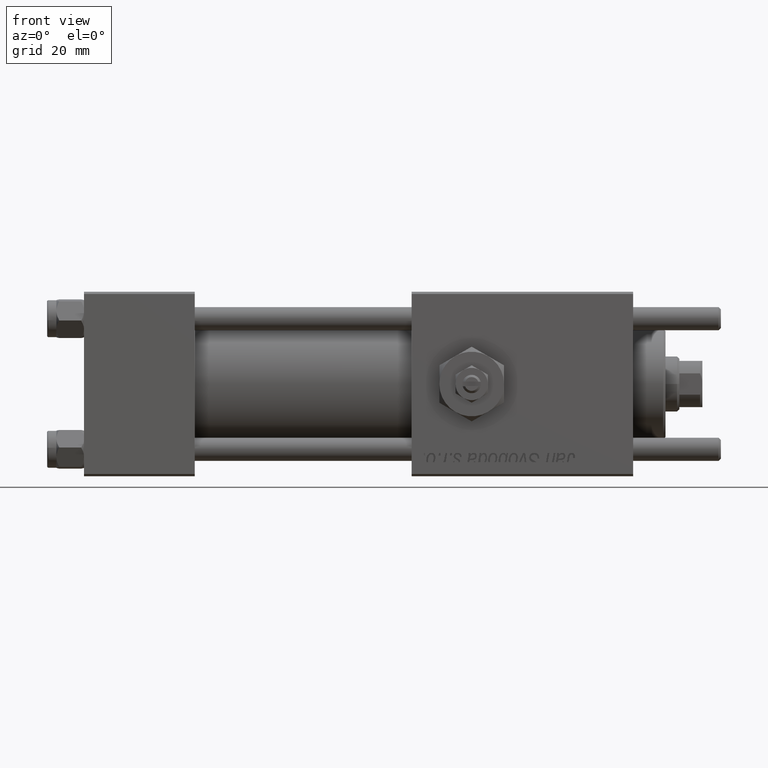
[diagram: clean part render]
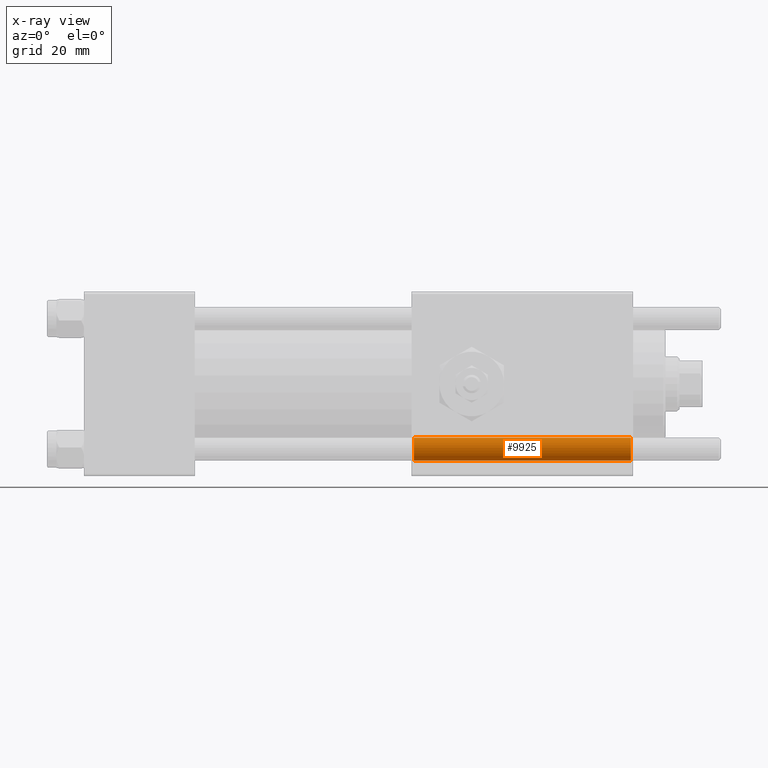
[diagram: x-ray — body ghosted, one internal face saturated and labeled with its STEP entity id]
A machine part, front view, then the same camera in x-ray: the body is ghosted and one INTERNAL B-rep face — a face not visible from any outside direction — is saturated and labeled: STEP entity #9925.
In plain terms, the highlighted cylindrical surface (edge-blend (fillet) strip) has radius 2.5 mm, axis along (1, 0, 0).
Its self-contained STEP definition (entity closure, byte-faithful):
#943 = CARTESIAN_POINT ( 'NONE',  ( 71.50000000000000000, -14.15000000000000036, -14.15000000000000036 ) ) ;
#1562 = AXIS2_PLACEMENT_3D ( 'NONE', #3075, #52582, #21155 ) ;
#1868 = CARTESIAN_POINT ( 'NONE',  ( 118.5000000000000000, -14.15000000000000036, -14.15000000000000036 ) ) ;
#2587 = LINE ( 'NONE', #24828, #22473 ) ;
#3075 = CARTESIAN_POINT ( 'NONE',  ( 61.00000000000000711, -14.15000000000000036, -14.15000000000000036 ) ) ;
#6592 = VERTEX_POINT ( 'NONE', #36018 ) ;
#7014 = ORIENTED_EDGE ( 'NONE', *, *, #11765, .F. ) ;
#7085 = EDGE_CURVE ( 'NONE', #6592, #50381, #30828, .T. ) ;
#8306 = DIRECTION ( 'NONE',  ( 1.000000000000000000, 0.000000000000000000, 0.000000000000000000 ) ) ;
#8529 = EDGE_LOOP ( 'NONE', ( #52247, #43121, #52432, #7014 ) ) ;
#9349 = CIRCLE ( 'NONE', #11228, 2.499999999999996891 ) ;
#9904 = DIRECTION ( 'NONE',  ( 1.000000000000000000, 0.000000000000000000, 0.000000000000000000 ) ) ;
#9925 = ADVANCED_FACE ( 'NONE', ( #15821 ), #34498, .F. ) ;
#10706 = DIRECTION ( 'NONE',  ( 0.000000000000000000, 0.000000000000000000, 1.000000000000000000 ) ) ;
#11228 = AXIS2_PLACEMENT_3D ( 'NONE', #1868, #9904, #46660 ) ;
#11765 = EDGE_CURVE ( 'NONE', #46352, #38532, #2587, .T. ) ;
#11884 = VECTOR ( 'NONE', #8306, 1000.000000000000000 ) ;
#15821 = FACE_OUTER_BOUND ( 'NONE', #8529, .T. ) ;
#15983 = EDGE_CURVE ( 'NONE', #50381, #38532, #9349, .T. ) ;
#20378 = DIRECTION ( 'NONE',  ( 1.000000000000000000, 0.000000000000000000, 0.000000000000000000 ) ) ;
#21155 = DIRECTION ( 'NONE',  ( 0.000000000000000000, 0.000000000000000000, -1.000000000000000000 ) ) ;
#21337 = CARTESIAN_POINT ( 'NONE',  ( 71.50000000000000000, -14.15000000000000036, -16.64999999999999858 ) ) ;
#22473 = VECTOR ( 'NONE', #20378, 1000.000000000000000 ) ;
#24828 = CARTESIAN_POINT ( 'NONE',  ( 61.00000000000000711, -14.15000000000000036, -16.64999999999999858 ) ) ;
#30828 = LINE ( 'NONE', #44786, #11884 ) ;
#34498 = CYLINDRICAL_SURFACE ( 'NONE', #1562, 2.499999999999996891 ) ;
#36018 = CARTESIAN_POINT ( 'NONE',  ( 71.50000000000000000, -14.15000000000000036, -11.65000000000000391 ) ) ;
#38532 = VERTEX_POINT ( 'NONE', #43173 ) ;
#38909 = CARTESIAN_POINT ( 'NONE',  ( 118.5000000000000000, -14.15000000000000036, -11.65000000000000391 ) ) ;
#43121 = ORIENTED_EDGE ( 'NONE', *, *, #7085, .T. ) ;
#43173 = CARTESIAN_POINT ( 'NONE',  ( 118.5000000000000000, -14.15000000000000036, -16.64999999999999858 ) ) ;
#43615 = AXIS2_PLACEMENT_3D ( 'NONE', #943, #46310, #10706 ) ;
#43648 = EDGE_CURVE ( 'NONE', #46352, #6592, #54976, .T. ) ;
#44786 = CARTESIAN_POINT ( 'NONE',  ( 61.00000000000000711, -14.15000000000000036, -11.65000000000000391 ) ) ;
#46310 = DIRECTION ( 'NONE',  ( -1.000000000000000000, -0.000000000000000000, -0.000000000000000000 ) ) ;
#46352 = VERTEX_POINT ( 'NONE', #21337 ) ;
#46660 = DIRECTION ( 'NONE',  ( 0.000000000000000000, 0.000000000000000000, 1.000000000000000000 ) ) ;
#50381 = VERTEX_POINT ( 'NONE', #38909 ) ;
#52247 = ORIENTED_EDGE ( 'NONE', *, *, #43648, .T. ) ;
#52432 = ORIENTED_EDGE ( 'NONE', *, *, #15983, .T. ) ;
#52582 = DIRECTION ( 'NONE',  ( 1.000000000000000000, 0.000000000000000000, 0.000000000000000000 ) ) ;
#54976 = CIRCLE ( 'NONE', #43615, 2.499999999999996891 ) ;